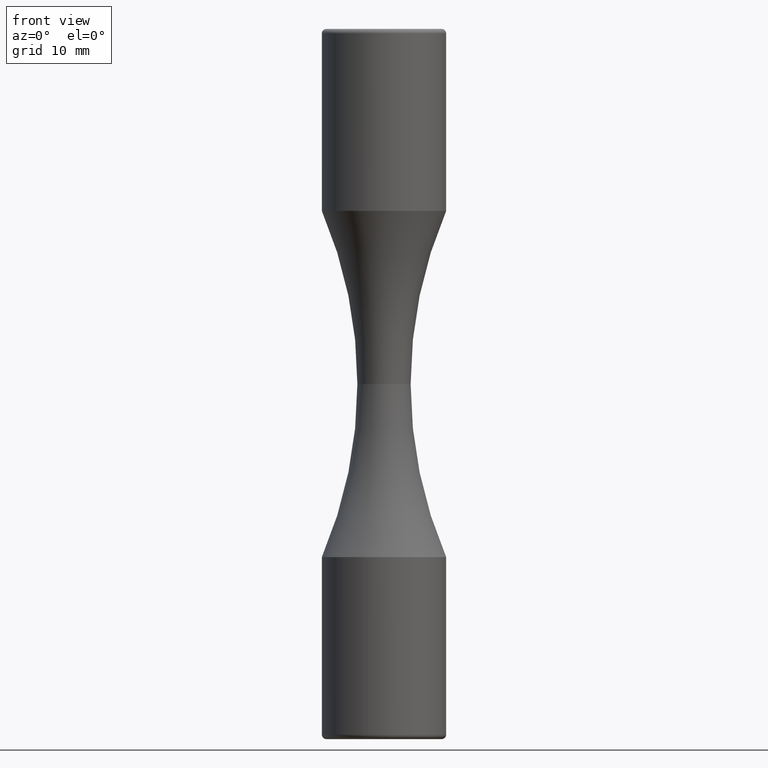
[diagram: clean part render]
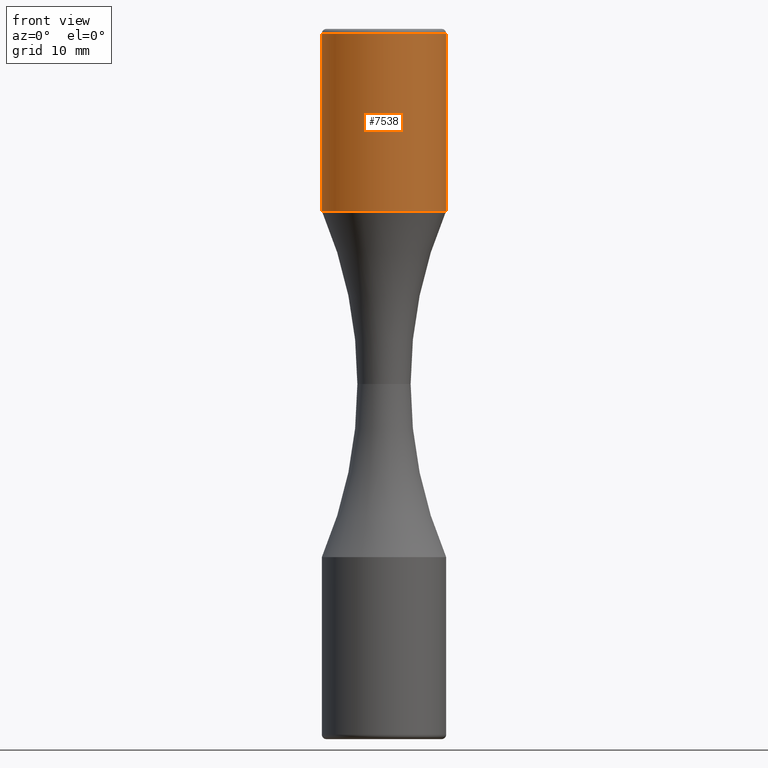
[diagram: same view with one face highlighted and labeled with its STEP entity id]
A machine part, front view. The second image highlights one B-rep face of the part: STEP entity #7538.
In plain terms, the highlighted cylindrical surface (partial cylindrical patch) has radius 7 mm, axis along (-0, -0, -1).
Its self-contained STEP definition (entity closure, byte-faithful):
#126 = VERTEX_POINT ( 'NONE', #2508 ) ;
#199 = AXIS2_PLACEMENT_3D ( 'NONE', #2064, #8137, #552 ) ;
#332 = CARTESIAN_POINT ( 'NONE',  ( -7.000000000000003553, -3.469446951953614189E-15, 39.49358868961792979 ) ) ;
#366 = EDGE_CURVE ( 'NONE', #126, #7358, #7533, .T. ) ;
#482 = FACE_OUTER_BOUND ( 'NONE', #9948, .T. ) ;
#552 = DIRECTION ( 'NONE',  ( -1.000000000000000000, 0.000000000000000000, 0.000000000000000000 ) ) ;
#954 = CARTESIAN_POINT ( 'NONE',  ( -7.000000000000000888, 0.000000000000000000, 19.49358868961792268 ) ) ;
#1976 = DIRECTION ( 'NONE',  ( -1.000000000000000000, 0.000000000000000000, 0.000000000000000000 ) ) ;
#2064 = CARTESIAN_POINT ( 'NONE',  ( 0.000000000000000000, -3.469446951953614189E-15, -16.82833891354982114 ) ) ;
#2253 = DIRECTION ( 'NONE',  ( -0.000000000000000000, -0.000000000000000000, -1.000000000000000000 ) ) ;
#2325 = CARTESIAN_POINT ( 'NONE',  ( -7.000000000000003553, -3.469446951953614189E-15, -16.82833891354982114 ) ) ;
#2381 = LINE ( 'NONE', #2325, #6917 ) ;
#2382 = EDGE_CURVE ( 'NONE', #10034, #9291, #7781, .T. ) ;
#2508 = CARTESIAN_POINT ( 'NONE',  ( 7.000000000000000888, 8.572527594031469245E-16, 19.49358868961792268 ) ) ;
#2519 = DIRECTION ( 'NONE',  ( -0.000000000000000000, -0.000000000000000000, -1.000000000000000000 ) ) ;
#2908 = ORIENTED_EDGE ( 'NONE', *, *, #6532, .F. ) ;
#3347 = AXIS2_PLACEMENT_3D ( 'NONE', #7237, #8084, #1976 ) ;
#3970 = DIRECTION ( 'NONE',  ( 1.000000000000000000, 0.000000000000000000, 0.000000000000000000 ) ) ;
#4570 = LINE ( 'NONE', #10391, #6346 ) ;
#5166 = EDGE_CURVE ( 'NONE', #9291, #7358, #2381, .T. ) ;
#5239 = ORIENTED_EDGE ( 'NONE', *, *, #2382, .T. ) ;
#6346 = VECTOR ( 'NONE', #2519, 1000.000000000000000 ) ;
#6532 = EDGE_CURVE ( 'NONE', #10034, #126, #4570, .T. ) ;
#6917 = VECTOR ( 'NONE', #2253, 1000.000000000000000 ) ;
#7040 = AXIS2_PLACEMENT_3D ( 'NONE', #9227, #9115, #3970 ) ;
#7237 = CARTESIAN_POINT ( 'NONE',  ( 0.000000000000000000, -3.469446951953614189E-15, 19.49358868961792268 ) ) ;
#7358 = VERTEX_POINT ( 'NONE', #954 ) ;
#7533 = CIRCLE ( 'NONE', #3347, 7.000000000000002665 ) ;
#7538 = ADVANCED_FACE ( 'NONE', ( #482 ), #9513, .T. ) ;
#7710 = ORIENTED_EDGE ( 'NONE', *, *, #366, .F. ) ;
#7781 = CIRCLE ( 'NONE', #7040, 7.000000000000003553 ) ;
#8084 = DIRECTION ( 'NONE',  ( -0.000000000000000000, -0.000000000000000000, -1.000000000000000000 ) ) ;
#8137 = DIRECTION ( 'NONE',  ( -0.000000000000000000, -0.000000000000000000, -1.000000000000000000 ) ) ;
#8275 = CARTESIAN_POINT ( 'NONE',  ( 7.000000000000003553, -2.612194192550466574E-15, 39.49358868961792979 ) ) ;
#9115 = DIRECTION ( 'NONE',  ( -0.000000000000000000, -0.000000000000000000, -1.000000000000000000 ) ) ;
#9227 = CARTESIAN_POINT ( 'NONE',  ( 0.000000000000000000, -3.469446951953614189E-15, 39.49358868961792979 ) ) ;
#9291 = VERTEX_POINT ( 'NONE', #332 ) ;
#9513 = CYLINDRICAL_SURFACE ( 'NONE', #199, 7.000000000000003553 ) ;
#9948 = EDGE_LOOP ( 'NONE', ( #2908, #5239, #10595, #7710 ) ) ;
#10034 = VERTEX_POINT ( 'NONE', #8275 ) ;
#10391 = CARTESIAN_POINT ( 'NONE',  ( 7.000000000000003553, -2.612194192550466574E-15, -16.82833891354982114 ) ) ;
#10595 = ORIENTED_EDGE ( 'NONE', *, *, #5166, .T. ) ;